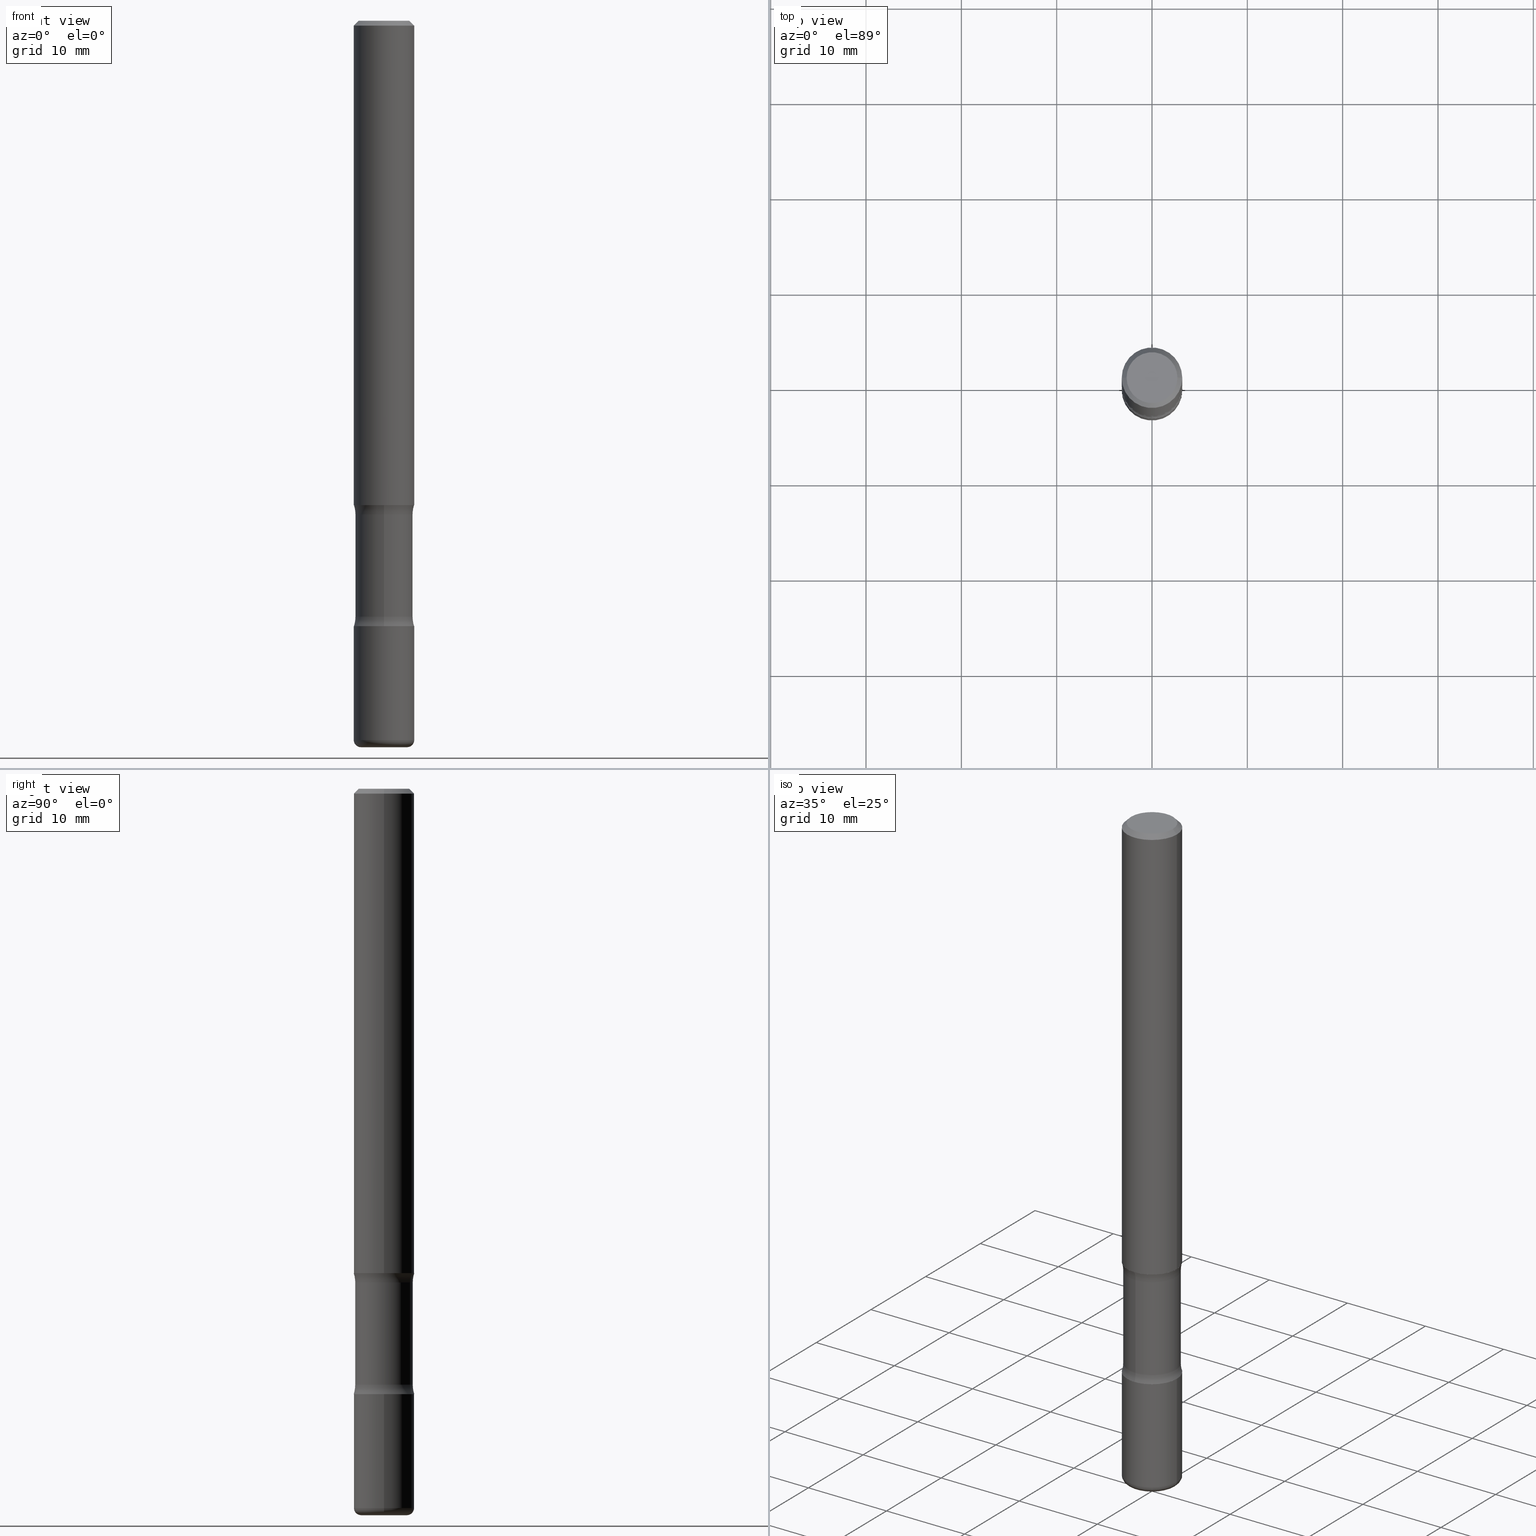
[diagram: canonical four-view strip — front | top / right | iso, engineering-drawing reading convention]
A machine part, canonical four-view strip (front | top / right | iso — engineering-drawing reading convention). The complete STEP part file that produces these views, byte-faithful:
ISO-10303-21;
HEADER;
FILE_DESCRIPTION (( 'STEP AP203' ),
    '1' );
FILE_NAME ('37794.STEP',
    '2024-03-02T00:21:17',
    ( '' ),
    ( '' ),
    'SwSTEP 2.0',
    'SolidWorks 2023',
    '' );
FILE_SCHEMA (( 'CONFIG_CONTROL_DESIGN' ));
ENDSEC;

DATA;
#1 = EDGE_CURVE ( 'NONE', #392, #73, #218, .T. ) ;
#2 = DIRECTION ( 'NONE',  ( -1.000000000000000000, 6.982962677686266711E-15, 0.000000000000000000 ) ) ;
#3 = CARTESIAN_POINT ( 'NONE',  ( 7.385442397868472267E-29, -1.040422170319851125E-14, -2.999999999999999556 ) ) ;
#4 = CARTESIAN_POINT ( 'NONE',  ( 8.292268179752933771E-16, 0.1187499999999928058, -2.039031237489990378 ) ) ;
#5 = AXIS2_PLACEMENT_3D ( 'NONE', #119, #492, #537 ) ;
#6 = ORIENTED_EDGE ( 'NONE', *, *, #45, .F. ) ;
#7 = CARTESIAN_POINT ( 'NONE',  ( 0.1250000000000000555, -9.601573681818646704E-15, -2.499999999999999556 ) ) ;
#8 = EDGE_LOOP ( 'NONE', ( #316, #487 ) ) ;
#9 = VERTEX_POINT ( 'NONE', #436 ) ;
#10 = PRODUCT_RELATED_PRODUCT_CATEGORY ( 'detail', '', ( #506 ) ) ;
#11 = ORIENTED_EDGE ( 'NONE', *, *, #257, .T. ) ;
#12 = CARTESIAN_POINT ( 'NONE',  ( 0.000000000000000000, 0.000000000000000000, 0.000000000000000000 ) ) ;
#13 = ORIENTED_EDGE ( 'NONE', *, *, #491, .T. ) ;
#14 = CARTESIAN_POINT ( 'NONE',  ( 0.1249999999999999167, -8.728703347107827472E-16, 6.095220969744915537E-30 ) ) ;
#15 = CIRCLE ( 'NONE', #5, 0.1250000000000000555 ) ;
#16 = VERTEX_POINT ( 'NONE', #180 ) ;
#17 = SECURITY_CLASSIFICATION ( '', '', #30 ) ;
#18 = DIRECTION ( 'NONE',  ( 6.982962677686265922E-15, 1.000000000000000000, -4.370956789862819572E-15 ) ) ;
#19 = EDGE_CURVE ( 'NONE', #352, #96, #131, .T. ) ;
#20 = ORIENTED_EDGE ( 'NONE', *, *, #182, .T. ) ;
#21 = ORIENTED_EDGE ( 'NONE', *, *, #193, .F. ) ;
#22 = EDGE_CURVE ( 'NONE', #314, #27, #349, .T. ) ;
#23 = CARTESIAN_POINT ( 'NONE',  ( 4.941179176714029352E-29, -7.183980100768040122E-15, -2.039031237489990378 ) ) ;
#24 = TOROIDAL_SURFACE ( 'NONE', #559, 0.2437500000000000500, 0.1249999999999999584 ) ;
#25 = ADVANCED_FACE ( 'NONE', ( #473 ), #310, .F. ) ;
#26 = CC_DESIGN_APPROVAL ( #387, ( #41 ) ) ;
#27 = VERTEX_POINT ( 'NONE', #63 ) ;
#28 = LENGTH_MEASURE_WITH_UNIT ( LENGTH_MEASURE( 0.02539999999999999897 ), #361 );
#29 = CARTESIAN_POINT ( 'NONE',  ( -8.361231934783443908E-16, -0.1187500000000085848, -2.460968762510009622 ) ) ;
#30 = SECURITY_CLASSIFICATION_LEVEL ( 'unclassified' ) ;
#31 = PLANE ( 'NONE',  #342 ) ;
#32 = ORIENTED_EDGE ( 'NONE', *, *, #87, .T. ) ;
#33 = ADVANCED_FACE ( 'NONE', ( #101 ), #106, .T. ) ;
#34 = ORIENTED_EDGE ( 'NONE', *, *, #234, .F. ) ;
#35 = APPROVAL_STATUS ( 'not_yet_approved' ) ;
#36 = DIRECTION ( 'NONE',  ( 1.000000000000000000, -6.982962677686267499E-15, 0.000000000000000000 ) ) ;
#37 = CIRCLE ( 'NONE', #341, 0.1187499999999999944 ) ;
#38 = CIRCLE ( 'NONE', #82, 0.1250000000000000555 ) ;
#39 = APPROVAL_DATE_TIME ( #337, #114 ) ;
#40 = CARTESIAN_POINT ( 'NONE',  ( 4.890937612370279289E-31, -6.982962677686299005E-17, -0.02000000000000002470 ) ) ;
#41 = PRODUCT_DEFINITION ( 'UNKNOWN', '', #166, #85 ) ;
#42 = ORIENTED_EDGE ( 'NONE', *, *, #509, .F. ) ;
#43 = DIRECTION ( 'NONE',  ( 6.982962677686266711E-15, 1.000000000000000000, -3.351036712181296563E-15 ) ) ;
#44 = CARTESIAN_POINT ( 'NONE',  ( 0.1249999999999997918, -9.273918764983029686E-16, -0.02000000000000002470 ) ) ;
#45 = EDGE_CURVE ( 'NONE', #223, #314, #381, .T. ) ;
#46 = VECTOR ( 'NONE', #52, 39.37007874015748143 ) ;
#47 = APPROVAL_PERSON_ORGANIZATION ( #370, #387, #403 ) ;
#48 = CARTESIAN_POINT ( 'NONE',  ( 1.374422904781070061E-28, 2.198688627549184381E-15, -2.500000000000000000 ) ) ;
#49 = EDGE_LOOP ( 'NONE', ( #141, #439, #402, #344 ) ) ;
#50 = CARTESIAN_POINT ( 'NONE',  ( -8.575622497213801114E-16, -0.1250000000000087153, -2.499999999999999112 ) ) ;
#51 = DIRECTION ( 'NONE',  ( 6.982962677686265922E-15, 1.000000000000000000, -4.370956789862819572E-15 ) ) ;
#52 = DIRECTION ( 'NONE',  ( -2.445468806185136877E-29, 3.491481338843145188E-15, 1.000000000000000000 ) ) ;
#53 = AXIS2_PLACEMENT_3D ( 'NONE', #516, #377, #555 ) ;
#54 = CC_DESIGN_PERSON_AND_ORGANIZATION_ASSIGNMENT ( #546, #414, ( #17 ) ) ;
#55 = ORIENTED_EDGE ( 'NONE', *, *, #123, .T. ) ;
#56 = PLANE ( 'NONE',  #418 ) ;
#57 = ORIENTED_EDGE ( 'NONE', *, *, #145, .T. ) ;
#58 = DIRECTION ( 'NONE',  ( 1.000000000000000000, -6.982962677686270655E-15, 0.000000000000000000 ) ) ;
#59 = DIRECTION ( 'NONE',  ( -2.445468806185136597E-29, 3.491481338843145583E-15, 1.000000000000000000 ) ) ;
#60 = EDGE_CURVE ( 'NONE', #396, #16, #37, .T. ) ;
#61 = DIRECTION ( 'NONE',  ( 2.543540764811263793E-29, -3.351036712181296563E-15, -1.000000000000000000 ) ) ;
#62 = CONICAL_SURFACE ( 'NONE', #153, 0.1249999999999997918, 0.7853981633974477239 ) ;
#63 = CARTESIAN_POINT ( 'NONE',  ( -0.1250000000000000555, -8.661023042035876364E-15, -2.499999999999999556 ) ) ;
#64 = ORIENTED_EDGE ( 'NONE', *, *, #19, .F. ) ;
#65 = APPROVAL_STATUS ( 'not_yet_approved' ) ;
#66 = CARTESIAN_POINT ( 'NONE',  ( -0.1250000000000001110, 8.881784197001260212E-16, -6.148668862818637832E-30 ) ) ;
#67 = VERTEX_POINT ( 'NONE', #202 ) ;
#68 = APPROVAL_ROLE ( '' ) ;
#69 = DIRECTION ( 'NONE',  ( -2.445468806185136597E-29, 3.491481338843145583E-15, 1.000000000000000000 ) ) ;
#70 = DATE_AND_TIME ( #448, #91 ) ;
#71 = DIRECTION ( 'NONE',  ( -1.000000000000000000, 6.982962677686265922E-15, -4.883557194083112340E-29 ) ) ;
#72 = AXIS2_PLACEMENT_3D ( 'NONE', #105, #102, #107 ) ;
#73 = VERTEX_POINT ( 'NONE', #158 ) ;
#74 = CIRCLE ( 'NONE', #453, 0.1250000000000000555 ) ;
#75 = EDGE_LOOP ( 'NONE', ( #103, #233 ) ) ;
#76 = PERSON_AND_ORGANIZATION ( #345, #501 ) ;
#77 = FACE_OUTER_BOUND ( 'NONE', #519, .T. ) ;
#78 = PERSON_AND_ORGANIZATION ( #345, #501 ) ;
#79 = CARTESIAN_POINT ( 'NONE',  ( 7.263042354369856275E-29, -1.036969957636414298E-14, -2.970000000000000195 ) ) ;
#80 = ADVANCED_FACE ( 'NONE', ( #113 ), #415, .T. ) ;
#81 = CARTESIAN_POINT ( 'NONE',  ( 6.014394471806022296E-29, -8.597908237357040299E-15, -2.460968762510010066 ) ) ;
#82 = AXIS2_PLACEMENT_3D ( 'NONE', #198, #503, #36 ) ;
#83 = CC_DESIGN_SECURITY_CLASSIFICATION ( #17, ( #166 ) ) ;
#84 = DIRECTION ( 'NONE',  ( 2.543540764811263793E-29, -3.351036712181296563E-15, -1.000000000000000000 ) ) ;
#85 = DESIGN_CONTEXT ( 'detailed design', #523, 'design' ) ;
#86 = DIRECTION ( 'NONE',  ( 6.982962677686266711E-15, 1.000000000000000000, -3.351036712181296563E-15 ) ) ;
#87 = EDGE_CURVE ( 'NONE', #16, #396, #108, .T. ) ;
#88 = VERTEX_POINT ( 'NONE', #405 ) ;
#89 = CARTESIAN_POINT ( 'NONE',  ( 0.1250000000000001110, -8.728703347107841277E-16, 6.095220969744924646E-30 ) ) ;
#90 = AXIS2_PLACEMENT_3D ( 'NONE', #122, #71, #547 ) ;
#91 = LOCAL_TIME ( 19, 21, 17.00000000000000000, #277 ) ;
#92 = DIRECTION ( 'NONE',  ( 2.543540764811263793E-29, -3.351036712181296563E-15, -1.000000000000000000 ) ) ;
#93 = CYLINDRICAL_SURFACE ( 'NONE', #462, 0.1187499999999999944 ) ;
#94 = EDGE_CURVE ( 'NONE', #557, #268, #317, .T. ) ;
#95 = CARTESIAN_POINT ( 'NONE',  ( 7.263042354369856275E-29, -1.036969957636414298E-14, -2.970000000000000195 ) ) ;
#96 = VERTEX_POINT ( 'NONE', #279 ) ;
#97 = ORIENTED_EDGE ( 'NONE', *, *, #413, .F. ) ;
#98 = ORIENTED_EDGE ( 'NONE', *, *, #328, .T. ) ;
#99 = AXIS2_PLACEMENT_3D ( 'NONE', #471, #212, #2 ) ;
#100 = AXIS2_PLACEMENT_3D ( 'NONE', #12, #183, #397 ) ;
#101 = FACE_OUTER_BOUND ( 'NONE', #440, .T. ) ;
#102 = DIRECTION ( 'NONE',  ( 2.438088387897960049E-29, -3.491481338843145188E-15, -1.000000000000000000 ) ) ;
#103 = ORIENTED_EDGE ( 'NONE', *, *, #94, .F. ) ;
#104 = EDGE_CURVE ( 'NONE', #96, #352, #451, .T. ) ;
#105 = CARTESIAN_POINT ( 'NONE',  ( 7.332110811570564466E-16, 0.1049999999999997879, -3.644712843334793412E-16 ) ) ;
#106 = CYLINDRICAL_SURFACE ( 'NONE', #460, 0.1250000000000001110 ) ;
#107 = DIRECTION ( 'NONE',  ( -1.000000000000000000, 6.982962677686265922E-15, -4.876176775795935793E-29 ) ) ;
#108 = CIRCLE ( 'NONE', #247, 0.1187499999999999944 ) ;
#109 = CIRCLE ( 'NONE', #263, 0.1250000000000000278 ) ;
#110 = DIRECTION ( 'NONE',  ( 6.982962677686265133E-15, 1.000000000000000000, -2.300503573612011422E-15 ) ) ;
#111 = APPROVAL_PERSON_ORGANIZATION ( #78, #114, #373 ) ;
#112 = PERSON_AND_ORGANIZATION ( #345, #501 ) ;
#113 = FACE_OUTER_BOUND ( 'NONE', #485, .T. ) ;
#114 = APPROVAL ( #35, 'UNSPECIFIED' ) ;
#115 = CARTESIAN_POINT ( 'NONE',  ( -1.043851414335219820E-46, 1.490343170380447200E-32, 4.268512490100411279E-18 ) ) ;
#116 = ORIENTED_EDGE ( 'NONE', *, *, #176, .F. ) ;
#117 = ORIENTED_EDGE ( 'NONE', *, *, #234, .T. ) ;
#118 =( NAMED_UNIT ( * ) PLANE_ANGLE_UNIT ( ) SI_UNIT ( $, .RADIAN. ) );
#119 = CARTESIAN_POINT ( 'NONE',  ( 6.113672015462840371E-29, -8.728703347107863365E-15, -2.499999999999999556 ) ) ;
#120 = AXIS2_PLACEMENT_3D ( 'NONE', #81, #545, #237 ) ;
#121 = CALENDAR_DATE ( 2024, 1, 3 ) ;
#122 = CARTESIAN_POINT ( 'NONE',  ( 1.702097152686088056E-15, 0.2437499999999914457, -2.460968762510010510 ) ) ;
#123 = EDGE_CURVE ( 'NONE', #352, #530, #160, .T. ) ;
#124 = DIRECTION ( 'NONE',  ( -1.000000000000000000, 6.982962677686265922E-15, -4.876176775795935793E-29 ) ) ;
#125 = CARTESIAN_POINT ( 'NONE',  ( -0.1250000000000000000, -9.481521156664016174E-15, -2.970000000000000195 ) ) ;
#126 = CIRCLE ( 'NONE', #434, 0.1250000000000001388 ) ;
#127 = ADVANCED_FACE ( 'NONE', ( #77 ), #31, .F. ) ;
#128 = CYLINDRICAL_SURFACE ( 'NONE', #538, 0.1187499999999999944 ) ;
#129 = DIRECTION ( 'NONE',  ( 6.860497997771529985E-15, 1.000000000000000000, 0.000000000000000000 ) ) ;
#130 = FACE_OUTER_BOUND ( 'NONE', #416, .T. ) ;
#131 = CIRCLE ( 'NONE', #432, 0.1049999999999997879 ) ;
#132 = AXIS2_PLACEMENT_3D ( 'NONE', #95, #343, #58 ) ;
#133 = CIRCLE ( 'NONE', #187, 0.02999999999999969705 ) ;
#134 = FACE_OUTER_BOUND ( 'NONE', #191, .T. ) ;
#135 = CC_DESIGN_PERSON_AND_ORGANIZATION_ASSIGNMENT ( #197, #452, ( #506 ) ) ;
#136 = CARTESIAN_POINT ( 'NONE',  ( -0.1249999999999999167, 8.881784197001246407E-16, -6.148668862818628023E-30 ) ) ;
#137 = ORIENTED_EDGE ( 'NONE', *, *, #60, .T. ) ;
#138 = DIRECTION ( 'NONE',  ( 1.000000000000000000, -6.982962677686270655E-15, 0.000000000000000000 ) ) ;
#139 = DIRECTION ( 'NONE',  ( -2.445468806185136597E-29, 3.491481338843145583E-15, 1.000000000000000000 ) ) ;
#140 = ORIENTED_EDGE ( 'NONE', *, *, #145, .F. ) ;
#141 = ORIENTED_EDGE ( 'NONE', *, *, #328, .F. ) ;
#142 = FACE_OUTER_BOUND ( 'NONE', #481, .T. ) ;
#143 = AXIS2_PLACEMENT_3D ( 'NONE', #518, #531, #315 ) ;
#144 = ORIENTED_EDGE ( 'NONE', *, *, #199, .F. ) ;
#145 = EDGE_CURVE ( 'NONE', #88, #147, #210, .T. ) ;
#146 =( GEOMETRIC_REPRESENTATION_CONTEXT ( 3 ) GLOBAL_UNCERTAINTY_ASSIGNED_CONTEXT ( ( #181 ) ) GLOBAL_UNIT_ASSIGNED_CONTEXT ( ( #408, #118, #540 ) ) REPRESENTATION_CONTEXT ( 'NONE', 'WORKASPACE' ) );
#147 = VERTEX_POINT ( 'NONE', #29 ) ;
#148 = CARTESIAN_POINT ( 'NONE',  ( 6.113672015462840371E-29, -8.728703347107863365E-15, -2.499999999999999556 ) ) ;
#149 = DIRECTION ( 'NONE',  ( 1.000000000000000000, -6.982962677686265922E-15, 4.876206205277404118E-29 ) ) ;
#150 = CARTESIAN_POINT ( 'NONE',  ( 4.938696304666674034E-29, -7.187535714856152812E-15, -2.039031237489990378 ) ) ;
#151 = ORIENTED_EDGE ( 'NONE', *, *, #437, .F. ) ;
#152 = DIRECTION ( 'NONE',  ( 1.000000000000000000, 0.000000000000000000, 0.000000000000000000 ) ) ;
#153 = AXIS2_PLACEMENT_3D ( 'NONE', #331, #338, #427 ) ;
#154 = FACE_OUTER_BOUND ( 'NONE', #459, .T. ) ;
#155 = EDGE_LOOP ( 'NONE', ( #188, #221, #495, #116 ) ) ;
#156 = CC_DESIGN_PERSON_AND_ORGANIZATION_ASSIGNMENT ( #242, #411, ( #166 ) ) ;
#157 = APPLICATION_PROTOCOL_DEFINITION ( 'international standard', 'config_control_design', 1994, #275 ) ;
#158 = CARTESIAN_POINT ( 'NONE',  ( -0.1250000000000000278, -2.638217732531448450E-15, -2.000000000000000000 ) ) ;
#159 = COORDINATED_UNIVERSAL_TIME_OFFSET ( 5, 0, .BEHIND. ) ;
#160 = LINE ( 'NONE', #454, #382 ) ;
#161 = VERTEX_POINT ( 'NONE', #371 ) ;
#162 = DIRECTION ( 'NONE',  ( 0.000000000000000000, 0.000000000000000000, 1.000000000000000000 ) ) ;
#163 = DIRECTION ( 'NONE',  ( 2.543540764811263793E-29, -3.351036712181296563E-15, -1.000000000000000000 ) ) ;
#164 = EDGE_CURVE ( 'NONE', #489, #27, #15, .T. ) ;
#165 = CIRCLE ( 'NONE', #353, 0.1250000000000000278 ) ;
#166 = PRODUCT_DEFINITION_FORMATION_WITH_SPECIFIED_SOURCE ( 'ANY', '', #506, .NOT_KNOWN. ) ;
#167 = PERSON_AND_ORGANIZATION_ROLE ( 'creator' ) ;
#168 = CARTESIAN_POINT ( 'NONE',  ( 7.336406418555408669E-29, -1.047444401652943478E-14, -2.999999999999999556 ) ) ;
#169 = CARTESIAN_POINT ( 'NONE',  ( 0.1249999999999997918, -9.273918764983029686E-16, -0.02000000000000002470 ) ) ;
#170 = FACE_OUTER_BOUND ( 'NONE', #326, .T. ) ;
#171 = DIMENSIONAL_EXPONENTS ( 1.000000000000000000, 0.000000000000000000, 0.000000000000000000, 0.000000000000000000, 0.000000000000000000, 0.000000000000000000, 0.000000000000000000 ) ;
#172 = CIRCLE ( 'NONE', #527, 0.1250000000000001388 ) ;
#173 = CARTESIAN_POINT ( 'NONE',  ( -0.09500000000000015377, -9.640474787110678770E-15, -2.999999999999999556 ) ) ;
#174 = CARTESIAN_POINT ( 'NONE',  ( 7.336406418555408669E-29, -1.047444401652943478E-14, -2.999999999999999556 ) ) ;
#175 = DIRECTION ( 'NONE',  ( -2.445468806185136597E-29, 3.491481338843145583E-15, 1.000000000000000000 ) ) ;
#176 = EDGE_CURVE ( 'NONE', #9, #88, #469, .T. ) ;
#177 = CIRCLE ( 'NONE', #539, 0.1250000000000000555 ) ;
#178 = CYLINDRICAL_SURFACE ( 'NONE', #525, 0.1249999999999999167 ) ;
#179 = ORIENTED_EDGE ( 'NONE', *, *, #483, .F. ) ;
#180 = CARTESIAN_POINT ( 'NONE',  ( -8.361231934783569139E-16, -0.1187500000000071831, -2.039031237489989934 ) ) ;
#181 = UNCERTAINTY_MEASURE_WITH_UNIT (LENGTH_MEASURE( 1.000000000000000082E-05 ), #408, 'distance_accuracy_value', 'NONE');
#182 = EDGE_CURVE ( 'NONE', #16, #147, #365, .T. ) ;
#183 = DIRECTION ( 'NONE',  ( -2.445468806185136597E-29, 3.491481338843145583E-15, 1.000000000000000000 ) ) ;
#184 = ORIENTED_EDGE ( 'NONE', *, *, #280, .F. ) ;
#185 = CIRCLE ( 'NONE', #324, 0.02999999999999969705 ) ;
#186 = DIRECTION ( 'NONE',  ( -2.445468806185136877E-29, 3.491481338843145188E-15, 1.000000000000000000 ) ) ;
#187 = AXIS2_PLACEMENT_3D ( 'NONE', #267, #441, #393 ) ;
#188 = ORIENTED_EDGE ( 'NONE', *, *, #543, .F. ) ;
#189 = CARTESIAN_POINT ( 'NONE',  ( 0.09500000000000015377, -1.113782547090963138E-14, -2.999999999999999556 ) ) ;
#190 = CARTESIAN_POINT ( 'NONE',  ( 0.000000000000000000, 0.000000000000000000, 0.000000000000000000 ) ) ;
#191 = EDGE_LOOP ( 'NONE', ( #535, #64, #55, #348 ) ) ;
#192 = DIRECTION ( 'NONE',  ( 1.000000000000000000, -6.982962677686266711E-15, 4.876176775795935793E-29 ) ) ;
#193 = EDGE_CURVE ( 'NONE', #530, #308, #500, .T. ) ;
#194 = COORDINATED_UNIVERSAL_TIME_OFFSET ( 5, 0, .BEHIND. ) ;
#195 = AXIS2_PLACEMENT_3D ( 'NONE', #300, #466, #86 ) ;
#196 = DIRECTION ( 'NONE',  ( -2.438088387897960049E-29, 3.491481338843145188E-15, 1.000000000000000000 ) ) ;
#197 = PERSON_AND_ORGANIZATION ( #345, #501 ) ;
#198 = CARTESIAN_POINT ( 'NONE',  ( 6.113672015462840371E-29, -8.728703347107863365E-15, -2.499999999999999556 ) ) ;
#199 = EDGE_CURVE ( 'NONE', #27, #489, #38, .T. ) ;
#200 = DIRECTION ( 'NONE',  ( 2.543540764811263793E-29, -3.351036712181296563E-15, -1.000000000000000000 ) ) ;
#201 = DATE_AND_TIME ( #244, #463 ) ;
#202 = CARTESIAN_POINT ( 'NONE',  ( -8.575622497213937192E-16, -0.1250000000000071609, -1.999999999999999334 ) ) ;
#203 = VECTOR ( 'NONE', #522, 39.37007874015748143 ) ;
#204 = TOROIDAL_SURFACE ( 'NONE', #195, 0.2437500000000000222, 0.1250000000000000278 ) ;
#205 = DIRECTION ( 'NONE',  ( 6.982962677686265133E-15, 1.000000000000000000, -4.601007147224022844E-15 ) ) ;
#206 = ORIENTED_EDGE ( 'NONE', *, *, #334, .T. ) ;
#207 = LINE ( 'NONE', #89, #490 ) ;
#208 = ADVANCED_FACE ( 'NONE', ( #409 ), #239, .F. ) ;
#209 = DIRECTION ( 'NONE',  ( -2.445468806185136597E-29, 3.491481338843145583E-15, 1.000000000000000000 ) ) ;
#210 = CIRCLE ( 'NONE', #120, 0.1187499999999999806 ) ;
#211 = LOCAL_TIME ( 19, 21, 17.00000000000000000, #254 ) ;
#212 = DIRECTION ( 'NONE',  ( 2.445468806185136597E-29, -3.491481338843145583E-15, -1.000000000000000000 ) ) ;
#213 = ADVANCED_BREP_SHAPE_REPRESENTATION ( '37794', ( #467, #271, #455, #307 ), #146 ) ;
#214 = ADVANCED_FACE ( 'NONE', ( #325 ), #400, .T. ) ;
#215 = CARTESIAN_POINT ( 'NONE',  ( 0.1250000000000000278, -7.855833012397075293E-15, -2.000000000000000000 ) ) ;
#216 = DIRECTION ( 'NONE',  ( 1.000000000000000000, -6.860497997771530774E-15, 4.842518830249131545E-29 ) ) ;
#217 = ORIENTED_EDGE ( 'NONE', *, *, #104, .T. ) ;
#218 = CIRCLE ( 'NONE', #272, 0.1250000000000000278 ) ;
#219 = VECTOR ( 'NONE', #296, 39.37007874015748143 ) ;
#220 = LOCAL_TIME ( 19, 21, 17.00000000000000000, #194 ) ;
#221 = ORIENTED_EDGE ( 'NONE', *, *, #504, .T. ) ;
#222 = DIRECTION ( 'NONE',  ( -1.000000000000000000, 6.982962677686265922E-15, -4.876176775795935793E-29 ) ) ;
#223 = VERTEX_POINT ( 'NONE', #458 ) ;
#224 = ADVANCED_FACE ( 'NONE', ( #362 ), #552, .T. ) ;
#225 = DIRECTION ( 'NONE',  ( 6.860497997771531562E-15, 1.000000000000000000, 0.000000000000000000 ) ) ;
#226 = ORIENTED_EDGE ( 'NONE', *, *, #491, .F. ) ;
#227 = CYLINDRICAL_SURFACE ( 'NONE', #100, 0.1250000000000001110 ) ;
#228 = DIRECTION ( 'NONE',  ( 1.000000000000000000, -6.982962677686269077E-15, 0.000000000000000000 ) ) ;
#229 = ADVANCED_FACE ( 'NONE', ( #154 ), #204, .F. ) ;
#230 = AXIS2_PLACEMENT_3D ( 'NONE', #560, #290, #129 ) ;
#231 = PLANE ( 'NONE',  #72 ) ;
#232 = APPROVAL_PERSON_ORGANIZATION ( #445, #346, #68 ) ;
#233 = ORIENTED_EDGE ( 'NONE', *, *, #295, .F. ) ;
#234 = EDGE_CURVE ( 'NONE', #73, #392, #109, .T. ) ;
#235 = EDGE_LOOP ( 'NONE', ( #97, #249 ) ) ;
#236 = ORIENTED_EDGE ( 'NONE', *, *, #334, .F. ) ;
#237 = DIRECTION ( 'NONE',  ( 6.982962677686265133E-15, 1.000000000000000000, -4.601007147224022844E-15 ) ) ;
#238 = AXIS2_PLACEMENT_3D ( 'NONE', #312, #276, #484 ) ;
#239 = TOROIDAL_SURFACE ( 'NONE', #517, 0.2437500000000000500, 0.1249999999999999584 ) ;
#240 = DIRECTION ( 'NONE',  ( 6.982962677686266711E-15, 1.000000000000000000, -3.351036712181296563E-15 ) ) ;
#241 = EDGE_CURVE ( 'NONE', #396, #161, #165, .T. ) ;
#242 = PERSON_AND_ORGANIZATION ( #345, #501 ) ;
#243 = DIRECTION ( 'NONE',  ( -2.445468806185136597E-29, 3.491481338843145583E-15, 1.000000000000000000 ) ) ;
#244 = CALENDAR_DATE ( 2024, 1, 3 ) ;
#245 = DIRECTION ( 'NONE',  ( -2.445468806185136597E-29, 3.491481338843145583E-15, 1.000000000000000000 ) ) ;
#246 = DIRECTION ( 'NONE',  ( -2.445468806185136597E-29, 3.491481338843145583E-15, 1.000000000000000000 ) ) ;
#247 = AXIS2_PLACEMENT_3D ( 'NONE', #23, #200, #412 ) ;
#248 = CONICAL_SURFACE ( 'NONE', #99, 0.1249999999999997918, 0.7853981633974477239 ) ;
#249 = ORIENTED_EDGE ( 'NONE', *, *, #429, .F. ) ;
#250 = FACE_OUTER_BOUND ( 'NONE', #252, .T. ) ;
#251 = CC_DESIGN_PERSON_AND_ORGANIZATION_ASSIGNMENT ( #76, #323, ( #166 ) ) ;
#252 = EDGE_LOOP ( 'NONE', ( #13, #479 ) ) ;
#253 = CARTESIAN_POINT ( 'NONE',  ( 4.890937612370273194E-29, -6.982962677686291165E-15, -2.000000000000000000 ) ) ;
#254 = COORDINATED_UNIVERSAL_TIME_OFFSET ( 5, 0, .BEHIND. ) ;
#255 = DIRECTION ( 'NONE',  ( -2.543540764811263793E-29, 3.351036712181296563E-15, 1.000000000000000000 ) ) ;
#256 = AXIS2_PLACEMENT_3D ( 'NONE', #48, #255, #330 ) ;
#257 = EDGE_CURVE ( 'NONE', #96, #308, #512, .T. ) ;
#258 = CALENDAR_DATE ( 2024, 1, 3 ) ;
#259 = FACE_OUTER_BOUND ( 'NONE', #155, .T. ) ;
#260 = DIRECTION ( 'NONE',  ( 2.543540764811263793E-29, -3.351036712181296563E-15, -1.000000000000000000 ) ) ;
#261 = CARTESIAN_POINT ( 'NONE',  ( 4.841901633057209595E-29, -7.053184991017215478E-15, -2.000000000000000000 ) ) ;
#262 = ORIENTED_EDGE ( 'NONE', *, *, #164, .F. ) ;
#263 = AXIS2_PLACEMENT_3D ( 'NONE', #253, #465, #335 ) ;
#264 = VECTOR ( 'NONE', #186, 39.37007874015748143 ) ;
#265 = DIRECTION ( 'NONE',  ( 1.000000000000000000, -6.982962677686266711E-15, 4.876176775795935793E-29 ) ) ;
#266 = DIRECTION ( 'NONE',  ( -2.445468806185136597E-29, 3.491481338843145583E-15, 1.000000000000000000 ) ) ;
#267 = CARTESIAN_POINT ( 'NONE',  ( 0.09500000000000015377, -1.103308103074433958E-14, -2.970000000000000195 ) ) ;
#268 = VERTEX_POINT ( 'NONE', #173 ) ;
#269 = CARTESIAN_POINT ( 'NONE',  ( 1.374422904781070061E-28, 2.198688627549184381E-15, -2.500000000000000000 ) ) ;
#270 = DIRECTION ( 'NONE',  ( 1.000000000000000000, -6.982962677686266711E-15, 4.876176775795935232E-29 ) ) ;
#271 = MANIFOLD_SOLID_BREP ( 'Body-Move/Copy2[2]', #372 ) ;
#272 = AXIS2_PLACEMENT_3D ( 'NONE', #520, #59, #228 ) ;
#273 = ADVANCED_FACE ( 'NONE', ( #259 ), #24, .F. ) ;
#274 = CIRCLE ( 'NONE', #230, 0.1250000000000000278 ) ;
#275 = APPLICATION_CONTEXT ( 'configuration controlled 3d designs of mechanical parts and assemblies' ) ;
#276 = DIRECTION ( 'NONE',  ( 2.543540764811263793E-29, -3.351036712181296563E-15, -1.000000000000000000 ) ) ;
#277 = COORDINATED_UNIVERSAL_TIME_OFFSET ( 5, 0, .BEHIND. ) ;
#278 = DIRECTION ( 'NONE',  ( -0.7071067811865471286, 2.468850131082252722E-15, -0.7071067811865479058 ) ) ;
#279 = CARTESIAN_POINT ( 'NONE',  ( 0.1049999999999997879, -8.238720831321562839E-16, 4.268512490105855498E-18 ) ) ;
#280 = EDGE_CURVE ( 'NONE', #223, #489, #207, .T. ) ;
#281 = APPROVAL_DATE_TIME ( #497, #346 ) ;
#282 = AXIS2_PLACEMENT_3D ( 'NONE', #150, #309, #474 ) ;
#283 = TOROIDAL_SURFACE ( 'NONE', #282, 0.2437500000000000222, 0.1250000000000000278 ) ;
#284 = CARTESIAN_POINT ( 'NONE',  ( 0.000000000000000000, 0.000000000000000000, 0.000000000000000000 ) ) ;
#285 = CC_DESIGN_APPROVAL ( #114, ( #17 ) ) ;
#286 = DATE_AND_TIME ( #121, #333 ) ;
#287 = CARTESIAN_POINT ( 'NONE',  ( -8.146841372352953582E-16, -0.1187500000000103889, -2.999999999999999112 ) ) ;
#288 = CARTESIAN_POINT ( 'NONE',  ( 4.890937612370279289E-31, -6.982962677686299005E-17, -0.02000000000000002470 ) ) ;
#289 = ADVANCED_FACE ( 'NONE', ( #250 ), #378, .F. ) ;
#290 = DIRECTION ( 'NONE',  ( 1.000000000000000000, -6.860497997771530774E-15, 4.842518830249131545E-29 ) ) ;
#291 = AXIS2_PLACEMENT_3D ( 'NONE', #541, #69, #498 ) ;
#292 = CIRCLE ( 'NONE', #53, 0.1187499999999999806 ) ;
#293 = DIRECTION ( 'NONE',  ( -1.000000000000000000, 6.982962677686265922E-15, -4.883557194083112340E-29 ) ) ;
#294 = DIRECTION ( 'NONE',  ( -6.982962677686265133E-15, -1.000000000000000000, 0.000000000000000000 ) ) ;
#295 = EDGE_CURVE ( 'NONE', #268, #557, #388, .T. ) ;
#296 = DIRECTION ( 'NONE',  ( 0.7071067811865471286, -7.319954787623254468E-15, -0.7071067811865479058 ) ) ;
#297 = AXIS2_PLACEMENT_3D ( 'NONE', #521, #216, #225 ) ;
#298 = ORIENTED_EDGE ( 'NONE', *, *, #533, .F. ) ;
#299 = EDGE_LOOP ( 'NONE', ( #179, #117, #302, #21 ) ) ;
#300 = CARTESIAN_POINT ( 'NONE',  ( 4.938696304666674034E-29, -7.187535714856152812E-15, -2.039031237489990378 ) ) ;
#301 = CARTESIAN_POINT ( 'NONE',  ( 6.113672015462840371E-29, -8.728703347107863365E-15, -2.499999999999999556 ) ) ;
#302 = ORIENTED_EDGE ( 'NONE', *, *, #533, .T. ) ;
#303 = CC_DESIGN_DATE_AND_TIME_ASSIGNMENT ( #286, #457, ( #17 ) ) ;
#304 = DIRECTION ( 'NONE',  ( 2.543540764811263793E-29, -3.351036712181296563E-15, -1.000000000000000000 ) ) ;
#305 = ORIENTED_EDGE ( 'NONE', *, *, #429, .T. ) ;
#306 = TOROIDAL_SURFACE ( 'NONE', #143, 0.09500000000000015377, 0.02999999999999969705 ) ;
#307 = AXIS2_PLACEMENT_3D ( 'NONE', #493, #162, #152 ) ;
#308 = VERTEX_POINT ( 'NONE', #44 ) ;
#309 = DIRECTION ( 'NONE',  ( 2.543540764811263793E-29, -3.351036712181296563E-15, -1.000000000000000000 ) ) ;
#310 = PLANE ( 'NONE',  #238 ) ;
#311 = CARTESIAN_POINT ( 'NONE',  ( 4.841901633057209595E-29, -7.053184991017215478E-15, -2.000000000000000000 ) ) ;
#312 = CARTESIAN_POINT ( 'NONE',  ( 4.890937612370273194E-29, -6.982962677686291165E-15, -2.000000000000000000 ) ) ;
#313 = EDGE_CURVE ( 'NONE', #308, #530, #425, .T. ) ;
#314 = VERTEX_POINT ( 'NONE', #125 ) ;
#315 = DIRECTION ( 'NONE',  ( 1.000000000000000000, -6.982962677686271444E-15, 4.883557194083115143E-29 ) ) ;
#316 = ORIENTED_EDGE ( 'NONE', *, *, #164, .T. ) ;
#317 = CIRCLE ( 'NONE', #291, 0.09500000000000015377 ) ;
#318 = MECHANICAL_CONTEXT ( 'NONE', #275, 'mechanical' ) ;
#319 = ORIENTED_EDGE ( 'NONE', *, *, #504, .F. ) ;
#320 = DIRECTION ( 'NONE',  ( -2.445468806185136597E-29, 3.491481338843145583E-15, 1.000000000000000000 ) ) ;
#321 = DATE_TIME_ROLE ( 'creation_date' ) ;
#322 = DIRECTION ( 'NONE',  ( 1.000000000000000000, -6.982962677686265922E-15, 4.876206205277404118E-29 ) ) ;
#323 = PERSON_AND_ORGANIZATION_ROLE ( 'creator' ) ;
#324 = AXIS2_PLACEMENT_3D ( 'NONE', #424, #385, #468 ) ;
#325 = FACE_OUTER_BOUND ( 'NONE', #336, .T. ) ;
#326 = EDGE_LOOP ( 'NONE', ( #329, #11, #553, #554 ) ) ;
#327 = DIRECTION ( 'NONE',  ( 2.438088387897960049E-29, -3.491481338843145188E-15, -1.000000000000000000 ) ) ;
#328 = EDGE_CURVE ( 'NONE', #268, #314, #185, .T. ) ;
#329 = ORIENTED_EDGE ( 'NONE', *, *, #104, .F. ) ;
#330 = DIRECTION ( 'NONE',  ( -6.982962677686265922E-15, -1.000000000000000000, 3.351036712181296563E-15 ) ) ;
#331 = CARTESIAN_POINT ( 'NONE',  ( 4.890937612370279289E-31, -6.982962677686299005E-17, -0.02000000000000002470 ) ) ;
#332 = AXIS2_PLACEMENT_3D ( 'NONE', #40, #209, #380 ) ;
#333 = LOCAL_TIME ( 19, 21, 17.00000000000000000, #502 ) ;
#334 = EDGE_CURVE ( 'NONE', #16, #67, #274, .T. ) ;
#335 = DIRECTION ( 'NONE',  ( 1.000000000000000000, -6.982962677686269077E-15, 0.000000000000000000 ) ) ;
#336 = EDGE_LOOP ( 'NONE', ( #369, #98, #6, #42 ) ) ;
#337 = DATE_AND_TIME ( #258, #211 ) ;
#338 = DIRECTION ( 'NONE',  ( 2.445468806185136597E-29, -3.491481338843145583E-15, -1.000000000000000000 ) ) ;
#339 = EDGE_LOOP ( 'NONE', ( #542, #549, #526, #144 ) ) ;
#340 = CARTESIAN_POINT ( 'NONE',  ( 7.385442397868472267E-29, -1.040422170319851125E-14, -2.999999999999999556 ) ) ;
#341 = AXIS2_PLACEMENT_3D ( 'NONE', #360, #532, #110 ) ;
#342 = AXIS2_PLACEMENT_3D ( 'NONE', #449, #196, #447 ) ;
#343 = DIRECTION ( 'NONE',  ( -2.445468806185136597E-29, 3.491481338843145583E-15, 1.000000000000000000 ) ) ;
#344 = ORIENTED_EDGE ( 'NONE', *, *, #406, .F. ) ;
#345 = PERSON ( 'UNSPECIFIED', 'UNSPECIFIED', 'UNSPECIFIED', ('UNSPECIFIED'), ('UNSPECIFIED'), ('UNSPECIFIED') ) ;
#346 = APPROVAL ( #551, 'UNSPECIFIED' ) ;
#347 = FACE_OUTER_BOUND ( 'NONE', #299, .T. ) ;
#348 = ORIENTED_EDGE ( 'NONE', *, *, #193, .T. ) ;
#349 = LINE ( 'NONE', #66, #203 ) ;
#350 = ORIENTED_EDGE ( 'NONE', *, *, #176, .T. ) ;
#351 = DIRECTION ( 'NONE',  ( 6.982962677686265922E-15, 1.000000000000000000, -4.370956789862816416E-15 ) ) ;
#352 = VERTEX_POINT ( 'NONE', #513 ) ;
#353 = AXIS2_PLACEMENT_3D ( 'NONE', #423, #293, #294 ) ;
#354 = CC_DESIGN_APPROVAL ( #346, ( #166 ) ) ;
#355 = CARTESIAN_POINT ( 'NONE',  ( 8.292268179753179304E-16, 0.1187499999999896000, -3.000000000000000444 ) ) ;
#356 = ADVANCED_FACE ( 'NONE', ( #170 ), #248, .T. ) ;
#357 = ORIENTED_EDGE ( 'NONE', *, *, #241, .T. ) ;
#358 = ORIENTED_EDGE ( 'NONE', *, *, #1, .T. ) ;
#359 = FACE_OUTER_BOUND ( 'NONE', #8, .T. ) ;
#360 = CARTESIAN_POINT ( 'NONE',  ( 4.941179176714029352E-29, -7.183980100768040122E-15, -2.039031237489990378 ) ) ;
#361 =( LENGTH_UNIT ( ) NAMED_UNIT ( * ) SI_UNIT ( $, .METRE. ) );
#362 = FACE_OUTER_BOUND ( 'NONE', #75, .T. ) ;
#363 = CIRCLE ( 'NONE', #132, 0.1250000000000001388 ) ;
#364 = CALENDAR_DATE ( 2024, 1, 3 ) ;
#365 = LINE ( 'NONE', #287, #374 ) ;
#366 = ADVANCED_FACE ( 'NONE', ( #134 ), #62, .T. ) ;
#367 = ORIENTED_EDGE ( 'NONE', *, *, #413, .T. ) ;
#368 = CARTESIAN_POINT ( 'NONE',  ( 6.018222341714267541E-29, -8.592426509779609334E-15, -2.460968762510010066 ) ) ;
#369 = ORIENTED_EDGE ( 'NONE', *, *, #94, .T. ) ;
#370 = PERSON_AND_ORGANIZATION ( #345, #501 ) ;
#371 = CARTESIAN_POINT ( 'NONE',  ( 8.728703347108326426E-16, 0.1249999999999930611, -2.000000000000000444 ) ) ;
#372 = CLOSED_SHELL ( 'NONE', ( #80, #356, #366, #456, #127, #470 ) ) ;
#373 = APPROVAL_ROLE ( '' ) ;
#374 = VECTOR ( 'NONE', #494, 39.37007874015748143 ) ;
#375 = DIRECTION ( 'NONE',  ( 1.000000000000000000, -6.982962677686271444E-15, 4.883557194083115143E-29 ) ) ;
#376 = ADVANCED_FACE ( 'NONE', ( #130 ), #93, .T. ) ;
#377 = DIRECTION ( 'NONE',  ( 2.543540764811263793E-29, -3.351036712181296563E-15, -1.000000000000000000 ) ) ;
#378 = PLANE ( 'NONE',  #256 ) ;
#379 = ADVANCED_FACE ( 'NONE', ( #511 ), #128, .T. ) ;
#380 = DIRECTION ( 'NONE',  ( 1.000000000000000000, -6.982962677686266711E-15, 0.000000000000000000 ) ) ;
#381 = CIRCLE ( 'NONE', #515, 0.1250000000000001388 ) ;
#382 = VECTOR ( 'NONE', #278, 39.37007874015748143 ) ;
#383 = CARTESIAN_POINT ( 'NONE',  ( 6.018222341714267541E-29, -8.592426509779609334E-15, -2.460968762510010066 ) ) ;
#384 = EDGE_LOOP ( 'NONE', ( #319, #226, #350, #57 ) ) ;
#385 = DIRECTION ( 'NONE',  ( 7.105427357601001859E-15, 1.000000000000000000, -3.491481338843145583E-15 ) ) ;
#386 = LINE ( 'NONE', #14, #264 ) ;
#387 = APPROVAL ( #65, 'UNSPECIFIED' ) ;
#388 = CIRCLE ( 'NONE', #417, 0.09500000000000015377 ) ;
#389 = CIRCLE ( 'NONE', #297, 0.1249999999999999584 ) ;
#390 = DIRECTION ( 'NONE',  ( 2.543540764811263793E-29, -3.351036712181296563E-15, -1.000000000000000000 ) ) ;
#391 = VERTEX_POINT ( 'NONE', #50 ) ;
#392 = VERTEX_POINT ( 'NONE', #215 ) ;
#393 = DIRECTION ( 'NONE',  ( 1.000000000000000000, -6.982962677686273810E-15, 0.000000000000000000 ) ) ;
#394 = ORIENTED_EDGE ( 'NONE', *, *, #1, .F. ) ;
#395 = EDGE_CURVE ( 'NONE', #147, #88, #292, .T. ) ;
#396 = VERTEX_POINT ( 'NONE', #4 ) ;
#397 = DIRECTION ( 'NONE',  ( 1.000000000000000000, -6.982962677686266711E-15, 4.876176775795935232E-29 ) ) ;
#398 = ORIENTED_EDGE ( 'NONE', *, *, #22, .T. ) ;
#399 = CLOSED_SHELL ( 'NONE', ( #376, #273, #229, #475, #25, #289, #208, #379 ) ) ;
#400 = TOROIDAL_SURFACE ( 'NONE', #443, 0.09500000000000015377, 0.02999999999999969705 ) ;
#401 = CARTESIAN_POINT ( 'NONE',  ( -0.1249999999999997918, 8.030407079339189559E-16, -0.02000000000000002470 ) ) ;
#402 = ORIENTED_EDGE ( 'NONE', *, *, #509, .T. ) ;
#403 = APPROVAL_ROLE ( '' ) ;
#404 = EDGE_LOOP ( 'NONE', ( #407, #32, #507, #410 ) ) ;
#405 = CARTESIAN_POINT ( 'NONE',  ( 8.292268179753040267E-16, 0.1187499999999913763, -2.460968762510010510 ) ) ;
#406 = EDGE_CURVE ( 'NONE', #314, #223, #363, .T. ) ;
#407 = ORIENTED_EDGE ( 'NONE', *, *, #182, .F. ) ;
#408 =( CONVERSION_BASED_UNIT ( 'INCH', #28 ) LENGTH_UNIT ( ) NAMED_UNIT ( #171 ) );
#409 = FACE_OUTER_BOUND ( 'NONE', #384, .T. ) ;
#410 = ORIENTED_EDGE ( 'NONE', *, *, #395, .F. ) ;
#411 = PERSON_AND_ORGANIZATION_ROLE ( 'design_supplier' ) ;
#412 = DIRECTION ( 'NONE',  ( 6.982962677686265133E-15, 1.000000000000000000, -2.300503573612011422E-15 ) ) ;
#413 = EDGE_CURVE ( 'NONE', #161, #67, #126, .T. ) ;
#414 = PERSON_AND_ORGANIZATION_ROLE ( 'classification_officer' ) ;
#415 = CYLINDRICAL_SURFACE ( 'NONE', #488, 0.1249999999999999167 ) ;
#416 = EDGE_LOOP ( 'NONE', ( #137, #20, #140, #151 ) ) ;
#417 = AXIS2_PLACEMENT_3D ( 'NONE', #174, #175, #505 ) ;
#418 = AXIS2_PLACEMENT_3D ( 'NONE', #269, #472, #222 ) ;
#419 = DIRECTION ( 'NONE',  ( 1.000000000000000000, -6.982962677686266711E-15, 0.000000000000000000 ) ) ;
#420 = PRODUCT_DEFINITION_SHAPE ( 'NONE', 'NONE',  #41 ) ;
#421 = ADVANCED_FACE ( 'NONE', ( #524 ), #306, .T. ) ;
#422 = ORIENTED_EDGE ( 'NONE', *, *, #60, .F. ) ;
#423 = CARTESIAN_POINT ( 'NONE',  ( 1.702097152686077012E-15, 0.2437499999999928613, -2.039031237489991266 ) ) ;
#424 = CARTESIAN_POINT ( 'NONE',  ( -0.09500000000000015377, -9.694683977392046419E-15, -2.970000000000000195 ) ) ;
#425 = CIRCLE ( 'NONE', #332, 0.1249999999999997918 ) ;
#426 = SHAPE_DEFINITION_REPRESENTATION ( #420, #213 ) ;
#427 = DIRECTION ( 'NONE',  ( -1.000000000000000000, 6.982962677686266711E-15, 0.000000000000000000 ) ) ;
#428 = ORIENTED_EDGE ( 'NONE', *, *, #19, .T. ) ;
#429 = EDGE_CURVE ( 'NONE', #67, #161, #172, .T. ) ;
#430 = CARTESIAN_POINT ( 'NONE',  ( 0.000000000000000000, 0.000000000000000000, 0.000000000000000000 ) ) ;
#431 = LINE ( 'NONE', #136, #46 ) ;
#432 = AXIS2_PLACEMENT_3D ( 'NONE', #476, #529, #149 ) ;
#433 = ORIENTED_EDGE ( 'NONE', *, *, #45, .T. ) ;
#434 = AXIS2_PLACEMENT_3D ( 'NONE', #261, #528, #480 ) ;
#435 = FACE_OUTER_BOUND ( 'NONE', #534, .T. ) ;
#436 = CARTESIAN_POINT ( 'NONE',  ( 8.728703347108444755E-16, 0.1249999999999912570, -2.500000000000000000 ) ) ;
#437 = EDGE_CURVE ( 'NONE', #396, #88, #482, .T. ) ;
#438 = FACE_OUTER_BOUND ( 'NONE', #339, .T. ) ;
#439 = ORIENTED_EDGE ( 'NONE', *, *, #295, .T. ) ;
#440 = EDGE_LOOP ( 'NONE', ( #433, #398, #262, #184 ) ) ;
#441 = DIRECTION ( 'NONE',  ( -6.982962677686266711E-15, -1.000000000000000000, 3.491481338843145583E-15 ) ) ;
#442 = CARTESIAN_POINT ( 'NONE',  ( 7.263042354369856275E-29, -1.036969957636414298E-14, -2.970000000000000195 ) ) ;
#443 = AXIS2_PLACEMENT_3D ( 'NONE', #79, #245, #375 ) ;
#444 = DIRECTION ( 'NONE',  ( -2.445468806185136597E-29, 3.491481338843145583E-15, 1.000000000000000000 ) ) ;
#445 = PERSON_AND_ORGANIZATION ( #345, #501 ) ;
#446 = CC_DESIGN_DATE_AND_TIME_ASSIGNMENT ( #70, #321, ( #41 ) ) ;
#447 = DIRECTION ( 'NONE',  ( 1.000000000000000000, -6.982962677686265922E-15, 4.876176775795935793E-29 ) ) ;
#448 = CALENDAR_DATE ( 2024, 1, 3 ) ;
#449 = CARTESIAN_POINT ( 'NONE',  ( 4.890937612370273194E-29, -6.982962677686291165E-15, -2.000000000000000000 ) ) ;
#450 = AXIS2_PLACEMENT_3D ( 'NONE', #115, #243, #322 ) ;
#451 = CIRCLE ( 'NONE', #450, 0.1049999999999997879 ) ;
#452 = PERSON_AND_ORGANIZATION_ROLE ( 'design_owner' ) ;
#453 = AXIS2_PLACEMENT_3D ( 'NONE', #301, #486, #51 ) ;
#454 = CARTESIAN_POINT ( 'NONE',  ( -0.1249999999999997918, 8.030407079339189559E-16, -0.02000000000000002470 ) ) ;
#455 = MANIFOLD_SOLID_BREP ( 'Body-Move/Copy2[4]', #399 ) ;
#456 = ADVANCED_FACE ( 'NONE', ( #435 ), #231, .F. ) ;
#457 = DATE_TIME_ROLE ( 'classification_date' ) ;
#458 = CARTESIAN_POINT ( 'NONE',  ( 0.1250000000000000000, -1.124256991107492790E-14, -2.970000000000000195 ) ) ;
#459 = EDGE_LOOP ( 'NONE', ( #477, #206, #305, #550 ) ) ;
#460 = AXIS2_PLACEMENT_3D ( 'NONE', #190, #444, #270 ) ;
#461 = ORIENTED_EDGE ( 'NONE', *, *, #483, .T. ) ;
#462 = AXIS2_PLACEMENT_3D ( 'NONE', #3, #260, #464 ) ;
#463 = LOCAL_TIME ( 19, 21, 17.00000000000000000, #159 ) ;
#464 = DIRECTION ( 'NONE',  ( 6.982962677686265133E-15, 1.000000000000000000, -4.601007147224022844E-15 ) ) ;
#465 = DIRECTION ( 'NONE',  ( -2.445468806185136597E-29, 3.491481338843145583E-15, 1.000000000000000000 ) ) ;
#466 = DIRECTION ( 'NONE',  ( 2.543540764811263793E-29, -3.351036712181296563E-15, -1.000000000000000000 ) ) ;
#467 = MANIFOLD_SOLID_BREP ( 'Body-Move/Copy2[1]', #508 ) ;
#468 = DIRECTION ( 'NONE',  ( -1.000000000000000000, 7.105427357600997914E-15, 0.000000000000000000 ) ) ;
#469 = CIRCLE ( 'NONE', #90, 0.1249999999999999584 ) ;
#470 = ADVANCED_FACE ( 'NONE', ( #347 ), #178, .T. ) ;
#471 = CARTESIAN_POINT ( 'NONE',  ( 4.890937612370279289E-31, -6.982962677686299005E-17, -0.02000000000000002470 ) ) ;
#472 = DIRECTION ( 'NONE',  ( 2.438088387897960049E-29, -3.491481338843145188E-15, -1.000000000000000000 ) ) ;
#473 = FACE_OUTER_BOUND ( 'NONE', #235, .T. ) ;
#474 = DIRECTION ( 'NONE',  ( 6.982962677686266711E-15, 1.000000000000000000, -3.351036712181296563E-15 ) ) ;
#475 = ADVANCED_FACE ( 'NONE', ( #142 ), #283, .F. ) ;
#476 = CARTESIAN_POINT ( 'NONE',  ( -1.043851414335219820E-46, 1.490343170380447200E-32, 4.268512490100411279E-18 ) ) ;
#477 = ORIENTED_EDGE ( 'NONE', *, *, #87, .F. ) ;
#478 = VECTOR ( 'NONE', #390, 39.37007874015748143 ) ;
#479 = ORIENTED_EDGE ( 'NONE', *, *, #543, .T. ) ;
#480 = DIRECTION ( 'NONE',  ( 6.982962677686265922E-15, 1.000000000000000000, -4.370956789862816416E-15 ) ) ;
#481 = EDGE_LOOP ( 'NONE', ( #236, #422, #357, #367 ) ) ;
#482 = LINE ( 'NONE', #355, #478 ) ;
#483 = EDGE_CURVE ( 'NONE', #73, #530, #431, .T. ) ;
#484 = DIRECTION ( 'NONE',  ( 6.982962677686265922E-15, 1.000000000000000000, -3.351036712181296563E-15 ) ) ;
#485 = EDGE_LOOP ( 'NONE', ( #358, #461, #496, #298 ) ) ;
#486 = DIRECTION ( 'NONE',  ( 2.543540764811263793E-29, -3.351036712181296563E-15, -1.000000000000000000 ) ) ;
#487 = ORIENTED_EDGE ( 'NONE', *, *, #199, .T. ) ;
#488 = AXIS2_PLACEMENT_3D ( 'NONE', #284, #320, #192 ) ;
#489 = VERTEX_POINT ( 'NONE', #7 ) ;
#490 = VECTOR ( 'NONE', #558, 39.37007874015748143 ) ;
#491 = EDGE_CURVE ( 'NONE', #9, #391, #74, .T. ) ;
#492 = DIRECTION ( 'NONE',  ( -2.445468806185136597E-29, 3.491481338843145583E-15, 1.000000000000000000 ) ) ;
#493 = CARTESIAN_POINT ( 'NONE',  ( 0.000000000000000000, 0.000000000000000000, 0.000000000000000000 ) ) ;
#494 = DIRECTION ( 'NONE',  ( 2.543540764811263793E-29, -3.351036712181296563E-15, -1.000000000000000000 ) ) ;
#495 = ORIENTED_EDGE ( 'NONE', *, *, #395, .T. ) ;
#496 = ORIENTED_EDGE ( 'NONE', *, *, #313, .F. ) ;
#497 = DATE_AND_TIME ( #364, #220 ) ;
#498 = DIRECTION ( 'NONE',  ( 1.000000000000000000, -6.982962677686270655E-15, 0.000000000000000000 ) ) ;
#499 = ADVANCED_FACE ( 'NONE', ( #359 ), #56, .F. ) ;
#500 = CIRCLE ( 'NONE', #510, 0.1249999999999997918 ) ;
#501 = ORGANIZATION ( 'UNSPECIFIED', 'UNSPECIFIED', '' ) ;
#502 = COORDINATED_UNIVERSAL_TIME_OFFSET ( 5, 0, .BEHIND. ) ;
#503 = DIRECTION ( 'NONE',  ( -2.445468806185136597E-29, 3.491481338843145583E-15, 1.000000000000000000 ) ) ;
#504 = EDGE_CURVE ( 'NONE', #391, #147, #389, .T. ) ;
#505 = DIRECTION ( 'NONE',  ( 1.000000000000000000, -6.982962677686270655E-15, 0.000000000000000000 ) ) ;
#506 = PRODUCT ( '37794', '37794', '', ( #318 ) ) ;
#507 = ORIENTED_EDGE ( 'NONE', *, *, #437, .T. ) ;
#508 = CLOSED_SHELL ( 'NONE', ( #33, #214, #224, #421, #514, #499 ) ) ;
#509 = EDGE_CURVE ( 'NONE', #557, #223, #133, .T. ) ;
#510 = AXIS2_PLACEMENT_3D ( 'NONE', #288, #246, #419 ) ;
#511 = FACE_OUTER_BOUND ( 'NONE', #404, .T. ) ;
#512 = LINE ( 'NONE', #169, #219 ) ;
#513 = CARTESIAN_POINT ( 'NONE',  ( -0.1049999999999997879, 7.681258945454876027E-16, 4.268512490095161194E-18 ) ) ;
#514 = ADVANCED_FACE ( 'NONE', ( #438 ), #227, .T. ) ;
#515 = AXIS2_PLACEMENT_3D ( 'NONE', #442, #266, #138 ) ;
#516 = CARTESIAN_POINT ( 'NONE',  ( 6.014394471806022296E-29, -8.597908237357040299E-15, -2.460968762510010066 ) ) ;
#517 = AXIS2_PLACEMENT_3D ( 'NONE', #368, #163, #240 ) ;
#518 = CARTESIAN_POINT ( 'NONE',  ( 7.263042354369856275E-29, -1.036969957636414298E-14, -2.970000000000000195 ) ) ;
#519 = EDGE_LOOP ( 'NONE', ( #394, #34 ) ) ;
#520 = CARTESIAN_POINT ( 'NONE',  ( 4.890937612370273194E-29, -6.982962677686291165E-15, -2.000000000000000000 ) ) ;
#521 = CARTESIAN_POINT ( 'NONE',  ( -1.672246386956750904E-15, -0.2437500000000086819, -2.460968762510009622 ) ) ;
#522 = DIRECTION ( 'NONE',  ( -2.445468806185136877E-29, 3.491481338843145188E-15, 1.000000000000000000 ) ) ;
#523 = APPLICATION_CONTEXT ( 'configuration controlled 3d designs of mechanical parts and assemblies' ) ;
#524 = FACE_OUTER_BOUND ( 'NONE', #49, .T. ) ;
#525 = AXIS2_PLACEMENT_3D ( 'NONE', #430, #139, #265 ) ;
#526 = ORIENTED_EDGE ( 'NONE', *, *, #280, .T. ) ;
#527 = AXIS2_PLACEMENT_3D ( 'NONE', #311, #304, #351 ) ;
#528 = DIRECTION ( 'NONE',  ( 2.543540764811263793E-29, -3.351036712181296563E-15, -1.000000000000000000 ) ) ;
#529 = DIRECTION ( 'NONE',  ( -2.445468806185136597E-29, 3.491481338843145583E-15, 1.000000000000000000 ) ) ;
#530 = VERTEX_POINT ( 'NONE', #401 ) ;
#531 = DIRECTION ( 'NONE',  ( -2.445468806185136597E-29, 3.491481338843145583E-15, 1.000000000000000000 ) ) ;
#532 = DIRECTION ( 'NONE',  ( 2.543540764811263793E-29, -3.351036712181296563E-15, -1.000000000000000000 ) ) ;
#533 = EDGE_CURVE ( 'NONE', #392, #308, #386, .T. ) ;
#534 = EDGE_LOOP ( 'NONE', ( #428, #217 ) ) ;
#535 = ORIENTED_EDGE ( 'NONE', *, *, #257, .F. ) ;
#536 = APPROVAL_DATE_TIME ( #201, #387 ) ;
#537 = DIRECTION ( 'NONE',  ( 1.000000000000000000, -6.982962677686267499E-15, 0.000000000000000000 ) ) ;
#538 = AXIS2_PLACEMENT_3D ( 'NONE', #340, #92, #205 ) ;
#539 = AXIS2_PLACEMENT_3D ( 'NONE', #148, #61, #18 ) ;
#540 =( NAMED_UNIT ( * ) SI_UNIT ( $, .STERADIAN. ) SOLID_ANGLE_UNIT ( ) );
#541 = CARTESIAN_POINT ( 'NONE',  ( 7.336406418555408669E-29, -1.047444401652943478E-14, -2.999999999999999556 ) ) ;
#542 = ORIENTED_EDGE ( 'NONE', *, *, #22, .F. ) ;
#543 = EDGE_CURVE ( 'NONE', #391, #9, #177, .T. ) ;
#544 = APPLICATION_PROTOCOL_DEFINITION ( 'international standard', 'config_control_design', 1994, #523 ) ;
#545 = DIRECTION ( 'NONE',  ( 2.543540764811263793E-29, -3.351036712181296563E-15, -1.000000000000000000 ) ) ;
#546 = PERSON_AND_ORGANIZATION ( #345, #501 ) ;
#547 = DIRECTION ( 'NONE',  ( -6.982962677686265922E-15, -1.000000000000000000, 0.000000000000000000 ) ) ;
#548 = AXIS2_PLACEMENT_3D ( 'NONE', #168, #327, #124 ) ;
#549 = ORIENTED_EDGE ( 'NONE', *, *, #406, .T. ) ;
#550 = ORIENTED_EDGE ( 'NONE', *, *, #241, .F. ) ;
#551 = APPROVAL_STATUS ( 'not_yet_approved' ) ;
#552 = PLANE ( 'NONE',  #548 ) ;
#553 = ORIENTED_EDGE ( 'NONE', *, *, #313, .T. ) ;
#554 = ORIENTED_EDGE ( 'NONE', *, *, #123, .F. ) ;
#555 = DIRECTION ( 'NONE',  ( 6.982962677686265133E-15, 1.000000000000000000, -4.601007147224022844E-15 ) ) ;
#556 = CC_DESIGN_PERSON_AND_ORGANIZATION_ASSIGNMENT ( #112, #167, ( #41 ) ) ;
#557 = VERTEX_POINT ( 'NONE', #189 ) ;
#558 = DIRECTION ( 'NONE',  ( -2.445468806185136877E-29, 3.491481338843145188E-15, 1.000000000000000000 ) ) ;
#559 = AXIS2_PLACEMENT_3D ( 'NONE', #383, #84, #43 ) ;
#560 = CARTESIAN_POINT ( 'NONE',  ( -1.672246386956761357E-15, -0.2437500000000072109, -2.039031237489989490 ) ) ;
ENDSEC;
END-ISO-10303-21;
